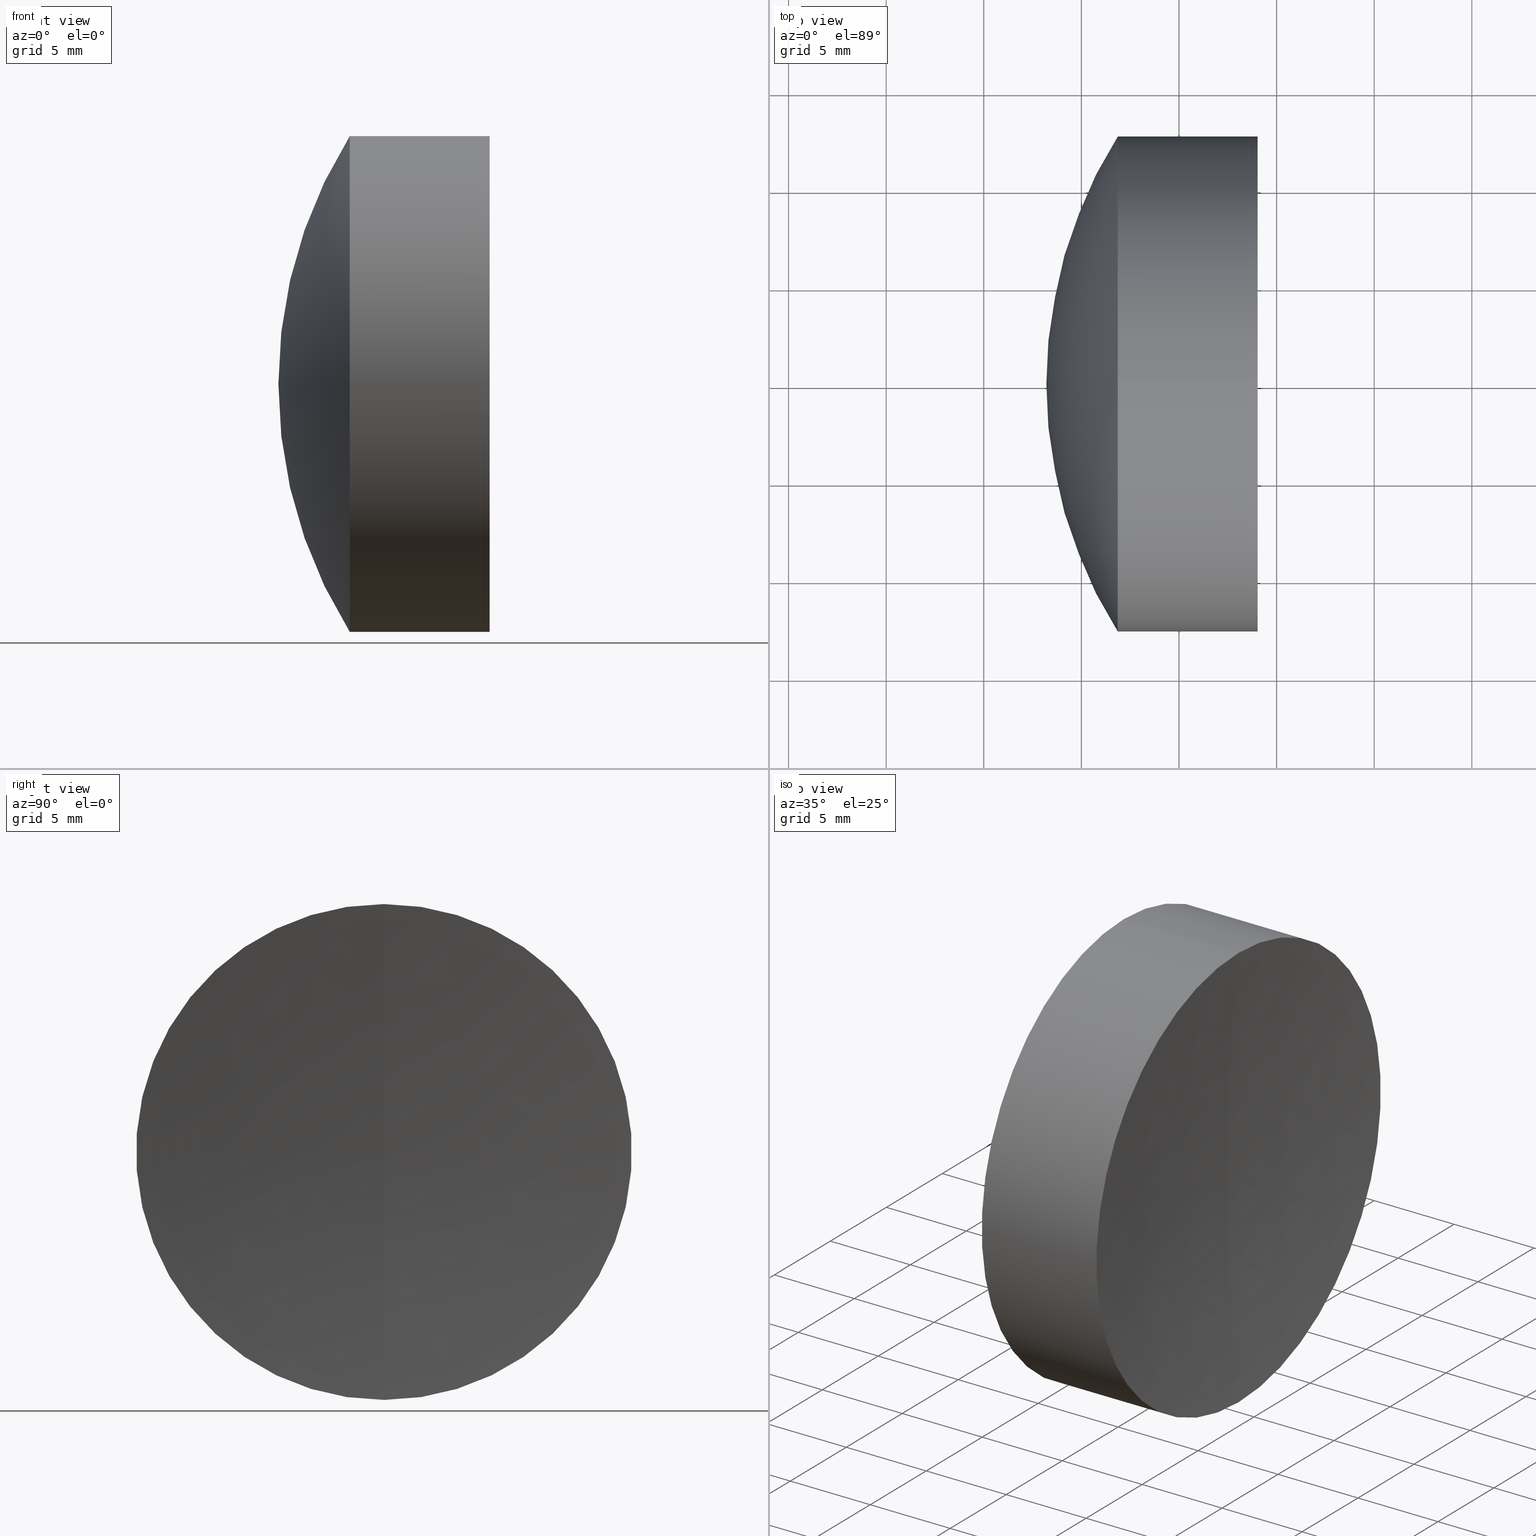
[diagram: canonical four-view strip — front | top / right | iso, engineering-drawing reading convention]
A machine part, canonical four-view strip (front | top / right | iso — engineering-drawing reading convention). The complete STEP part file that produces these views, byte-faithful:
ISO-10303-21;
HEADER;
FILE_DESCRIPTION (( 'STEP AP214' ),
    '1' );
FILE_NAME ('145163.STEP',
    '2019-06-07T06:10:12',
    ( 'user' ),
    ( '΢���й�' ),
    'SwSTEP 2.0',
    'SolidWorks 2016',
    '' );
FILE_SCHEMA (( 'AUTOMOTIVE_DESIGN' ));
ENDSEC;

DATA;
#1 = DIRECTION ( 'NONE',  ( 0.0000000000000000000, 1.000000000000000000, 0.0000000000000000000 ) ) ;
#2 = STYLED_ITEM ( 'NONE', ( #180 ), #346 ) ;
#3 = SPHERICAL_SURFACE ( 'NONE', #336, 112.0800000000000000 ) ;
#4 = ORIENTED_EDGE ( 'NONE', *, *, #33, .F. ) ;
#5 = DIRECTION ( 'NONE',  ( 0.0000000000000000000, 0.0000000000000000000, 1.000000000000000000 ) ) ;
#6 = CARTESIAN_POINT ( 'NONE',  ( 13.38661921602329700, 0.0000000000000000000, -1.021629593318478500E-014 ) ) ;
#7 = DIRECTION ( 'NONE',  ( 0.0000000000000000000, 1.000000000000000000, 0.0000000000000000000 ) ) ;
#8 = PRODUCT_DEFINITION_SHAPE ( 'NONE', 'NONE',  #90 ) ;
#9 = DIRECTION ( 'NONE',  ( 0.0000000000000000000, 0.0000000000000000000, -1.000000000000000000 ) ) ;
#10 = CARTESIAN_POINT ( 'NONE',  ( 44.02847447573057600, 0.0000000000000000000, -12.70000000000000300 ) ) ;
#11 = MANIFOLD_SOLID_BREP ( '��ת2', #281 ) ;
#12 = SURFACE_STYLE_FILL_AREA ( #280 ) ;
#13 = ORIENTED_EDGE ( 'NONE', *, *, #284, .T. ) ;
#14 = DIRECTION ( 'NONE',  ( 0.0000000000000000000, 0.0000000000000000000, 1.000000000000000000 ) ) ;
#15 = MECHANICAL_DESIGN_GEOMETRIC_PRESENTATION_REPRESENTATION (  '', ( #40 ), #254 ) ;
#16 = CIRCLE ( 'NONE', #332, 12.70000000000001500 ) ;
#17 = EDGE_LOOP ( 'NONE', ( #120, #335, #166 ) ) ;
#18 = EDGE_CURVE ( 'NONE', #190, #54, #186, .T. ) ;
#19 = FACE_OUTER_BOUND ( 'NONE', #235, .T. ) ;
#20 = AXIS2_PLACEMENT_3D ( 'NONE', #57, #72, #110 ) ;
#21 = CIRCLE ( 'NONE', #297, 12.69999999999999400 ) ;
#22 = UNCERTAINTY_MEASURE_WITH_UNIT (LENGTH_MEASURE( 1.000000000000000100E-005 ), #189, 'distance_accuracy_value', 'NONE');
#23 = EDGE_CURVE ( 'NONE', #196, #159, #43, .T. ) ;
#24 = EDGE_LOOP ( 'NONE', ( #36, #115, #192 ) ) ;
#25 = VERTEX_POINT ( 'NONE', #38 ) ;
#26 = DIRECTION ( 'NONE',  ( 0.0000000000000000000, 0.0000000000000000000, 1.000000000000000000 ) ) ;
#27 = CARTESIAN_POINT ( 'NONE',  ( 155.3866192160233800, 0.0000000000000000000, 0.0000000000000000000 ) ) ;
#28 = DIRECTION ( 'NONE',  ( -1.000000000000000000, -0.0000000000000000000, -0.0000000000000000000 ) ) ;
#29 = EDGE_CURVE ( 'NONE', #231, #25, #322, .T. ) ;
#30 = CIRCLE ( 'NONE', #127, 23.87999999999999900 ) ;
#31 = MECHANICAL_DESIGN_GEOMETRIC_PRESENTATION_REPRESENTATION (  '', ( #214 ), #177 ) ;
#32 = DIRECTION ( 'NONE',  ( -0.0000000000000000000, 1.000000000000000000, 1.224646799147353200E-016 ) ) ;
#33 = EDGE_CURVE ( 'NONE', #25, #202, #288, .T. ) ;
#34 = DIRECTION ( 'NONE',  ( -0.0000000000000000000, -1.000000000000000000, -0.0000000000000000000 ) ) ;
#35 = FILL_AREA_STYLE_COLOUR ( '', #182 ) ;
#36 = ORIENTED_EDGE ( 'NONE', *, *, #148, .F. ) ;
#37 = CARTESIAN_POINT ( 'NONE',  ( 43.30661921602337100, 0.0000000000000000000, -6.862920662421767300E-015 ) ) ;
#38 = CARTESIAN_POINT ( 'NONE',  ( 36.86375097237397100, 1.555301434917137400E-015, -12.69999999999999000 ) ) ;
#39 = CIRCLE ( 'NONE', #257, 12.69999999999999400 ) ;
#40 = STYLED_ITEM ( 'NONE', ( #263 ), #11 ) ;
#41 = CARTESIAN_POINT ( 'NONE',  ( 13.38661921602329700, 0.0000000000000000000, -1.021629593318478500E-014 ) ) ;
#42 = DIRECTION ( 'NONE',  ( 0.0000000000000000000, -1.000000000000000000, -1.224646799147353200E-016 ) ) ;
#43 = CIRCLE ( 'NONE', #244, 112.0800000000000000 ) ;
#44 = CLOSED_SHELL ( 'NONE', ( #302, #77, #92, #99, #167, #224 ) ) ;
#45 = DIRECTION ( 'NONE',  ( -1.000000000000000000, -0.0000000000000000000, -0.0000000000000000000 ) ) ;
#46 = ADVANCED_FACE ( 'NONE', ( #118 ), #104, .F. ) ;
#47 = SURFACE_STYLE_USAGE ( .BOTH. , #142 ) ;
#48 = CARTESIAN_POINT ( 'NONE',  ( 36.86375097237397100, 0.0000000000000000000, 0.0000000000000000000 ) ) ;
#49 = CYLINDRICAL_SURFACE ( 'NONE', #174, 12.70000000000001700 ) ;
#50 = CIRCLE ( 'NONE', #283, 28.12000000000006800 ) ;
#51 = SPHERICAL_SURFACE ( 'NONE', #209, 23.87999999999999900 ) ;
#52 = ORIENTED_EDGE ( 'NONE', *, *, #295, .T. ) ;
#53 = PRESENTATION_LAYER_ASSIGNMENT (  '', '', ( #40 ) ) ;
#54 = VERTEX_POINT ( 'NONE', #211 ) ;
#55 = EDGE_LOOP ( 'NONE', ( #52, #219, #274 ) ) ;
#56 = DIRECTION ( 'NONE',  ( -0.0000000000000000000, -1.000000000000000000, -0.0000000000000000000 ) ) ;
#57 = CARTESIAN_POINT ( 'NONE',  ( 57.08661921602329400, 0.0000000000000000000, -8.346372368148395400E-017 ) ) ;
#58 = AXIS2_PLACEMENT_3D ( 'NONE', #198, #32, #173 ) ;
#59 = CYLINDRICAL_SURFACE ( 'NONE', #171, 12.70000000000001700 ) ;
#60 = CARTESIAN_POINT ( 'NONE',  ( -0.5519199926577972300, 1.555301434917140600E-015, -12.70000000000001700 ) ) ;
#61 = ORIENTED_EDGE ( 'NONE', *, *, #94, .F. ) ;
#62 = FACE_OUTER_BOUND ( 'NONE', #125, .T. ) ;
#63 = PRODUCT_CONTEXT ( 'NONE', #311, 'mechanical' ) ;
#64 = CARTESIAN_POINT ( 'NONE',  ( 38.47534975385649100, 0.0000000000000000000, 0.0000000000000000000 ) ) ;
#65 = DIRECTION ( 'NONE',  ( 0.0000000000000000000, 1.000000000000000000, 0.0000000000000000000 ) ) ;
#66 = CARTESIAN_POINT ( 'NONE',  ( -0.8160621761658039000, 0.0000000000000000000, 12.69999999999999400 ) ) ;
#67 = EDGE_LOOP ( 'NONE', ( #301, #236, #105 ) ) ;
#68 = EDGE_LOOP ( 'NONE', ( #79, #253, #152, #4 ) ) ;
#69 = CIRCLE ( 'NONE', #20, 23.87999999999999900 ) ;
#70 = EDGE_LOOP ( 'NONE', ( #208, #327, #61 ) ) ;
#71 = EDGE_CURVE ( 'NONE', #241, #231, #347, .T. ) ;
#72 = DIRECTION ( 'NONE',  ( -0.0000000000000000000, 1.000000000000000000, 1.224646799147353200E-016 ) ) ;
#73 =( GEOMETRIC_REPRESENTATION_CONTEXT ( 3 ) GLOBAL_UNCERTAINTY_ASSIGNED_CONTEXT ( ( #84 ) ) GLOBAL_UNIT_ASSIGNED_CONTEXT ( ( #136, #304, #188 ) ) REPRESENTATION_CONTEXT ( 'NONE', 'WORKASPACE' ) );
#74 = ORIENTED_EDGE ( 'NONE', *, *, #94, .T. ) ;
#75 = EDGE_CURVE ( 'NONE', #299, #231, #156, .T. ) ;
#76 = ORIENTED_EDGE ( 'NONE', *, *, #295, .F. ) ;
#77 = ADVANCED_FACE ( 'NONE', ( #321 ), #206, .T. ) ;
#78 = DIRECTION ( 'NONE',  ( 0.0000000000000000000, 0.0000000000000000000, 1.000000000000000000 ) ) ;
#79 = ORIENTED_EDGE ( 'NONE', *, *, #29, .F. ) ;
#80 = PRODUCT_DEFINITION_FORMATION_WITH_SPECIFIED_SOURCE ( '�κ�', '', #223, .NOT_KNOWN. ) ;
#81 = CIRCLE ( 'NONE', #124, 12.70000000000001700 ) ;
#82 = DIRECTION ( 'NONE',  ( -1.000000000000000000, -0.0000000000000000000, -0.0000000000000000000 ) ) ;
#83 = DIRECTION ( 'NONE',  ( -1.000000000000000000, -0.0000000000000000000, -0.0000000000000000000 ) ) ;
#84 = UNCERTAINTY_MEASURE_WITH_UNIT (LENGTH_MEASURE( 1.000000000000000100E-005 ), #136, 'distance_accuracy_value', 'NONE');
#85 = FACE_OUTER_BOUND ( 'NONE', #55, .T. ) ;
#86 = CARTESIAN_POINT ( 'NONE',  ( -0.5519199926577972300, 0.0000000000000000000, 0.0000000000000000000 ) ) ;
#87 = ORIENTED_EDGE ( 'NONE', *, *, #121, .F. ) ;
#88 = CARTESIAN_POINT ( 'NONE',  ( 13.38661921602329700, 0.0000000000000000000, -1.021629593318478500E-014 ) ) ;
#89 = CIRCLE ( 'NONE', #221, 112.0800000000000000 ) ;
#90 = PRODUCT_DEFINITION ( 'δ֪', '', #80, #141 ) ;
#91 = EDGE_CURVE ( 'NONE', #231, #241, #21, .T. ) ;
#92 = ADVANCED_FACE ( 'NONE', ( #85 ), #305, .T. ) ;
#93 =( NAMED_UNIT ( * ) SI_UNIT ( $, .STERADIAN. ) SOLID_ANGLE_UNIT ( ) );
#94 = EDGE_CURVE ( 'NONE', #145, #159, #89, .T. ) ;
#95 = FACE_OUTER_BOUND ( 'NONE', #68, .T. ) ;
#96 = EDGE_LOOP ( 'NONE', ( #139, #216, #74 ) ) ;
#97 = ADVANCED_FACE ( 'NONE', ( #247 ), #201, .F. ) ;
#98 = DIRECTION ( 'NONE',  ( 0.0000000000000000000, 0.0000000000000000000, 1.000000000000000000 ) ) ;
#99 = ADVANCED_FACE ( 'NONE', ( #212 ), #51, .T. ) ;
#100 = CARTESIAN_POINT ( 'NONE',  ( -0.8160621761658039000, 1.555301434917138000E-015, -12.69999999999999400 ) ) ;
#101 =( NAMED_UNIT ( * ) PLANE_ANGLE_UNIT ( ) SI_UNIT ( $, .RADIAN. ) );
#102 = DIRECTION ( 'NONE',  ( 0.0000000000000000000, 0.0000000000000000000, 1.000000000000000000 ) ) ;
#103 = CARTESIAN_POINT ( 'NONE',  ( 44.02847447573056900, 0.0000000000000000000, 0.0000000000000000000 ) ) ;
#104 = SPHERICAL_SURFACE ( 'NONE', #168, 112.0800000000000000 ) ;
#105 = ORIENTED_EDGE ( 'NONE', *, *, #18, .T. ) ;
#106 = PRESENTATION_LAYER_ASSIGNMENT (  '', '', ( #2 ) ) ;
#107 = FACE_OUTER_BOUND ( 'NONE', #17, .T. ) ;
#108 = DIRECTION ( 'NONE',  ( 0.0000000000000000000, 0.0000000000000000000, 1.000000000000000000 ) ) ;
#109 = CARTESIAN_POINT ( 'NONE',  ( 44.02847447573057600, -1.555301434917138800E-015, 12.70000000000000300 ) ) ;
#110 = DIRECTION ( 'NONE',  ( 0.0000000000000000000, -1.224646799147353000E-016, 1.000000000000000000 ) ) ;
#111 = CARTESIAN_POINT ( 'NONE',  ( 57.08661921602329400, 0.0000000000000000000, -8.346372368148395400E-017 ) ) ;
#112 = APPLICATION_PROTOCOL_DEFINITION ( 'draft international standard', 'automotive_design', 1998, #329 ) ;
#113 = CARTESIAN_POINT ( 'NONE',  ( 155.3866192160233800, 0.0000000000000000000, 0.0000000000000000000 ) ) ;
#114 = EDGE_CURVE ( 'NONE', #54, #190, #16, .T. ) ;
#115 = ORIENTED_EDGE ( 'NONE', *, *, #181, .T. ) ;
#116 = DIRECTION ( 'NONE',  ( -1.000000000000000000, -0.0000000000000000000, -0.0000000000000000000 ) ) ;
#117 = CARTESIAN_POINT ( 'NONE',  ( -0.8160621761658039000, 0.0000000000000000000, 0.0000000000000000000 ) ) ;
#118 = FACE_OUTER_BOUND ( 'NONE', #70, .T. ) ;
#119 =( LENGTH_UNIT ( ) NAMED_UNIT ( * ) SI_UNIT ( .MILLI., .METRE. ) );
#120 = ORIENTED_EDGE ( 'NONE', *, *, #75, .F. ) ;
#121 = EDGE_CURVE ( 'NONE', #241, #202, #135, .T. ) ;
#122 = CIRCLE ( 'NONE', #58, 28.12000000000006800 ) ;
#123 = SURFACE_STYLE_FILL_AREA ( #157 ) ;
#124 = AXIS2_PLACEMENT_3D ( 'NONE', #170, #298, #78 ) ;
#125 = EDGE_LOOP ( 'NONE', ( #264, #230, #342 ) ) ;
#126 = DIRECTION ( 'NONE',  ( 0.0000000000000000000, -1.224646799147353200E-016, 1.000000000000000000 ) ) ;
#127 = AXIS2_PLACEMENT_3D ( 'NONE', #155, #333, #290 ) ;
#128 = DIRECTION ( 'NONE',  ( -0.0000000000000000000, 1.000000000000000000, 1.224646799147353200E-016 ) ) ;
#129 = EDGE_CURVE ( 'NONE', #202, #294, #30, .T. ) ;
#130 = FACE_OUTER_BOUND ( 'NONE', #96, .T. ) ;
#131 = ORIENTED_EDGE ( 'NONE', *, *, #210, .F. ) ;
#132 = AXIS2_PLACEMENT_3D ( 'NONE', #117, #339, #326 ) ;
#133 = CARTESIAN_POINT ( 'NONE',  ( 36.86375097237397100, 0.0000000000000000000, 12.69999999999999000 ) ) ;
#134 = DIRECTION ( 'NONE',  ( -1.000000000000000000, -0.0000000000000000000, -0.0000000000000000000 ) ) ;
#135 = LINE ( 'NONE', #66, #313 ) ;
#136 =( LENGTH_UNIT ( ) NAMED_UNIT ( * ) SI_UNIT ( .MILLI., .METRE. ) );
#137 = ADVANCED_FACE ( 'NONE', ( #151 ), #278, .F. ) ;
#138 =( GEOMETRIC_REPRESENTATION_CONTEXT ( 3 ) GLOBAL_UNCERTAINTY_ASSIGNED_CONTEXT ( ( #22 ) ) GLOBAL_UNIT_ASSIGNED_CONTEXT ( ( #189, #101, #93 ) ) REPRESENTATION_CONTEXT ( 'NONE', 'WORKASPACE' ) );
#139 = ORIENTED_EDGE ( 'NONE', *, *, #23, .F. ) ;
#140 = CARTESIAN_POINT ( 'NONE',  ( 13.38661921602329700, 0.0000000000000000000, -1.021629593318478500E-014 ) ) ;
#141 = PRODUCT_DEFINITION_CONTEXT ( 'detailed design', #329, 'design' ) ;
#142 = SURFACE_SIDE_STYLE ('',( #250 ) ) ;
#143 = COLOUR_RGB ( '',1.000000000000000000, 1.000000000000000000, 1.000000000000000000 ) ;
#144 = ADVANCED_BREP_SHAPE_REPRESENTATION ( '145163', ( #346, #11, #154 ), #73 ) ;
#145 = VERTEX_POINT ( 'NONE', #10 ) ;
#146 = AXIS2_PLACEMENT_3D ( 'NONE', #64, #246, #179 ) ;
#147 = PRESENTATION_STYLE_ASSIGNMENT (( #220 ) ) ;
#148 = EDGE_CURVE ( 'NONE', #197, #190, #122, .T. ) ;
#149 = FILL_AREA_STYLE ('',( #194 ) ) ;
#150 = DIRECTION ( 'NONE',  ( -1.000000000000000000, -0.0000000000000000000, -0.0000000000000000000 ) ) ;
#151 = FACE_OUTER_BOUND ( 'NONE', #67, .T. ) ;
#152 = ORIENTED_EDGE ( 'NONE', *, *, #121, .T. ) ;
#153 = DIRECTION ( 'NONE',  ( -1.000000000000000000, -0.0000000000000000000, -0.0000000000000000000 ) ) ;
#154 = AXIS2_PLACEMENT_3D ( 'NONE', #213, #266, #265 ) ;
#155 = CARTESIAN_POINT ( 'NONE',  ( 57.08661921602329400, 0.0000000000000000000, -8.346372368148395400E-017 ) ) ;
#156 = CIRCLE ( 'NONE', #228, 28.12000000000006800 ) ;
#157 = FILL_AREA_STYLE ('',( #35 ) ) ;
#158 = EDGE_LOOP ( 'NONE', ( #131, #243, #13, #331 ) ) ;
#159 = VERTEX_POINT ( 'NONE', #37 ) ;
#160 = MECHANICAL_DESIGN_GEOMETRIC_PRESENTATION_REPRESENTATION (  '', ( #2 ), #138 ) ;
#161 = DIRECTION ( 'NONE',  ( 0.0000000000000000000, 1.000000000000000000, 0.0000000000000000000 ) ) ;
#162 =( LENGTH_UNIT ( ) NAMED_UNIT ( * ) SI_UNIT ( .MILLI., .METRE. ) );
#163 = APPLICATION_PROTOCOL_DEFINITION ( 'draft international standard', 'automotive_design', 1998, #311 ) ;
#164 = CARTESIAN_POINT ( 'NONE',  ( -0.5519199926577972300, 0.0000000000000000000, 0.0000000000000000000 ) ) ;
#165 =( NAMED_UNIT ( * ) PLANE_ANGLE_UNIT ( ) SI_UNIT ( $, .RADIAN. ) );
#166 = ORIENTED_EDGE ( 'NONE', *, *, #91, .F. ) ;
#167 = ADVANCED_FACE ( 'NONE', ( #95 ), #310, .T. ) ;
#168 = AXIS2_PLACEMENT_3D ( 'NONE', #270, #56, #204 ) ;
#169 = CARTESIAN_POINT ( 'NONE',  ( 33.20661921602329900, 0.0000000000000000000, 1.378764554500455700E-015 ) ) ;
#170 = CARTESIAN_POINT ( 'NONE',  ( 44.02847447573056900, 0.0000000000000000000, 0.0000000000000000000 ) ) ;
#171 = AXIS2_PLACEMENT_3D ( 'NONE', #86, #261, #102 ) ;
#172 = ORIENTED_EDGE ( 'NONE', *, *, #312, .T. ) ;
#173 = DIRECTION ( 'NONE',  ( 0.0000000000000000000, -1.224646799147353200E-016, 1.000000000000000000 ) ) ;
#174 = AXIS2_PLACEMENT_3D ( 'NONE', #164, #116, #303 ) ;
#175 = ORIENTED_EDGE ( 'NONE', *, *, #114, .F. ) ;
#176 = CARTESIAN_POINT ( 'NONE',  ( 36.86375097237397100, 0.0000000000000000000, 0.0000000000000000000 ) ) ;
#177 =( GEOMETRIC_REPRESENTATION_CONTEXT ( 3 ) GLOBAL_UNCERTAINTY_ASSIGNED_CONTEXT ( ( #273 ) ) GLOBAL_UNIT_ASSIGNED_CONTEXT ( ( #119, #165, #267 ) ) REPRESENTATION_CONTEXT ( 'NONE', 'WORKASPACE' ) );
#178 = SURFACE_SIDE_STYLE ('',( #12 ) ) ;
#179 = DIRECTION ( 'NONE',  ( 0.0000000000000000000, 0.0000000000000000000, 1.000000000000000000 ) ) ;
#180 = PRESENTATION_STYLE_ASSIGNMENT (( #47 ) ) ;
#181 = EDGE_CURVE ( 'NONE', #197, #54, #50, .T. ) ;
#182 = COLOUR_RGB ( '',1.000000000000000000, 1.000000000000000000, 1.000000000000000000 ) ;
#183 = CARTESIAN_POINT ( 'NONE',  ( 13.38661921602329700, 0.0000000000000000000, -1.021629593318478500E-014 ) ) ;
#184 = SURFACE_SIDE_STYLE ('',( #123 ) ) ;
#185 = AXIS2_PLACEMENT_3D ( 'NONE', #41, #242, #9 ) ;
#186 = CIRCLE ( 'NONE', #275, 12.70000000000001500 ) ;
#187 = ADVANCED_FACE ( 'NONE', ( #272 ), #49, .T. ) ;
#188 =( NAMED_UNIT ( * ) SI_UNIT ( $, .STERADIAN. ) SOLID_ANGLE_UNIT ( ) );
#189 =( LENGTH_UNIT ( ) NAMED_UNIT ( * ) SI_UNIT ( .MILLI., .METRE. ) );
#190 = VERTEX_POINT ( 'NONE', #203 ) ;
#191 = CARTESIAN_POINT ( 'NONE',  ( 41.50661921602336700, 0.0000000000000000000, -8.494442533583603000E-015 ) ) ;
#192 = ORIENTED_EDGE ( 'NONE', *, *, #114, .T. ) ;
#193 = AXIS2_PLACEMENT_3D ( 'NONE', #6, #7, #316 ) ;
#194 = FILL_AREA_STYLE_COLOUR ( '', #143 ) ;
#195 = EDGE_CURVE ( 'NONE', #25, #294, #69, .T. ) ;
#196 = VERTEX_POINT ( 'NONE', #109 ) ;
#197 = VERTEX_POINT ( 'NONE', #314 ) ;
#198 = CARTESIAN_POINT ( 'NONE',  ( 13.38661921602329700, 0.0000000000000000000, -1.021629593318478500E-014 ) ) ;
#199 = ADVANCED_FACE ( 'NONE', ( #19 ), #59, .T. ) ;
#200 = PRESENTATION_LAYER_ASSIGNMENT (  '', '', ( #214 ) ) ;
#201 = SPHERICAL_SURFACE ( 'NONE', #234, 28.12000000000006800 ) ;
#202 = VERTEX_POINT ( 'NONE', #133 ) ;
#203 = CARTESIAN_POINT ( 'NONE',  ( 38.47534975385648400, 1.555301434917139200E-015, -12.70000000000001400 ) ) ;
#204 = DIRECTION ( 'NONE',  ( 0.0000000000000000000, 0.0000000000000000000, -1.000000000000000000 ) ) ;
#205 = CARTESIAN_POINT ( 'NONE',  ( 38.47534975385649100, 0.0000000000000000000, 0.0000000000000000000 ) ) ;
#206 = CYLINDRICAL_SURFACE ( 'NONE', #293, 12.69999999999999400 ) ;
#207 = ADVANCED_FACE ( 'NONE', ( #130 ), #3, .F. ) ;
#208 = ORIENTED_EDGE ( 'NONE', *, *, #312, .F. ) ;
#209 = AXIS2_PLACEMENT_3D ( 'NONE', #111, #1, #344 ) ;
#210 = EDGE_CURVE ( 'NONE', #145, #190, #258, .T. ) ;
#211 = CARTESIAN_POINT ( 'NONE',  ( 38.47534975385648400, 0.0000000000000000000, 12.70000000000000300 ) ) ;
#212 = FACE_OUTER_BOUND ( 'NONE', #341, .T. ) ;
#213 = CARTESIAN_POINT ( 'NONE',  ( 0.0000000000000000000, 0.0000000000000000000, 0.0000000000000000000 ) ) ;
#214 = STYLED_ITEM ( 'NONE', ( #147 ), #144 ) ;
#215 = VECTOR ( 'NONE', #83, 1000.000000000000000 ) ;
#216 = ORIENTED_EDGE ( 'NONE', *, *, #237, .F. ) ;
#217 = LINE ( 'NONE', #307, #255 ) ;
#218 = DIRECTION ( 'NONE',  ( 0.0000000000000000000, 0.0000000000000000000, -1.000000000000000000 ) ) ;
#219 = ORIENTED_EDGE ( 'NONE', *, *, #195, .T. ) ;
#220 = SURFACE_STYLE_USAGE ( .BOTH. , #178 ) ;
#221 = AXIS2_PLACEMENT_3D ( 'NONE', #27, #245, #271 ) ;
#222 = DIRECTION ( 'NONE',  ( 0.0000000000000000000, -1.000000000000000000, 0.0000000000000000000 ) ) ;
#223 = PRODUCT ( '145163', '145163', '', ( #63 ) ) ;
#224 = ADVANCED_FACE ( 'NONE', ( #107 ), #229, .T. ) ;
#225 = ORIENTED_EDGE ( 'NONE', *, *, #129, .T. ) ;
#226 = DIRECTION ( 'NONE',  ( -1.000000000000000000, -0.0000000000000000000, -0.0000000000000000000 ) ) ;
#227 = DIRECTION ( 'NONE',  ( 0.0000000000000000000, 0.0000000000000000000, 1.000000000000000000 ) ) ;
#228 = AXIS2_PLACEMENT_3D ( 'NONE', #88, #128, #126 ) ;
#229 = SPHERICAL_SURFACE ( 'NONE', #193, 28.12000000000006800 ) ;
#230 = ORIENTED_EDGE ( 'NONE', *, *, #75, .T. ) ;
#231 = VERTEX_POINT ( 'NONE', #251 ) ;
#232 =( NAMED_UNIT ( * ) PLANE_ANGLE_UNIT ( ) SI_UNIT ( $, .RADIAN. ) );
#233 = COLOUR_RGB ( '',1.000000000000000000, 1.000000000000000000, 1.000000000000000000 ) ;
#234 = AXIS2_PLACEMENT_3D ( 'NONE', #343, #65, #306 ) ;
#235 = EDGE_LOOP ( 'NONE', ( #172, #256, #175, #282 ) ) ;
#236 = ORIENTED_EDGE ( 'NONE', *, *, #148, .T. ) ;
#237 = EDGE_CURVE ( 'NONE', #145, #196, #319, .T. ) ;
#238 = DIRECTION ( 'NONE',  ( -1.000000000000000000, -0.0000000000000000000, -0.0000000000000000000 ) ) ;
#239 = AXIS2_PLACEMENT_3D ( 'NONE', #176, #28, #227 ) ;
#240 = CARTESIAN_POINT ( 'NONE',  ( 13.38661921602329700, 0.0000000000000000000, -1.021629593318478500E-014 ) ) ;
#241 = VERTEX_POINT ( 'NONE', #259 ) ;
#242 = DIRECTION ( 'NONE',  ( 0.0000000000000000000, -1.000000000000000000, 0.0000000000000000000 ) ) ;
#243 = ORIENTED_EDGE ( 'NONE', *, *, #237, .T. ) ;
#244 = AXIS2_PLACEMENT_3D ( 'NONE', #323, #42, #287 ) ;
#245 = DIRECTION ( 'NONE',  ( 0.0000000000000000000, 1.000000000000000000, -0.0000000000000000000 ) ) ;
#246 = DIRECTION ( 'NONE',  ( -1.000000000000000000, -0.0000000000000000000, -0.0000000000000000000 ) ) ;
#247 = FACE_OUTER_BOUND ( 'NONE', #24, .T. ) ;
#248 = ORIENTED_EDGE ( 'NONE', *, *, #195, .F. ) ;
#249 =( NAMED_UNIT ( * ) SI_UNIT ( $, .STERADIAN. ) SOLID_ANGLE_UNIT ( ) );
#250 = SURFACE_STYLE_FILL_AREA ( #149 ) ;
#251 = CARTESIAN_POINT ( 'NONE',  ( 38.47534975385649100, 1.555301434917138000E-015, -12.69999999999999400 ) ) ;
#252 = ORIENTED_EDGE ( 'NONE', *, *, #29, .T. ) ;
#253 = ORIENTED_EDGE ( 'NONE', *, *, #91, .T. ) ;
#254 =( GEOMETRIC_REPRESENTATION_CONTEXT ( 3 ) GLOBAL_UNCERTAINTY_ASSIGNED_CONTEXT ( ( #340 ) ) GLOBAL_UNIT_ASSIGNED_CONTEXT ( ( #162, #232, #249 ) ) REPRESENTATION_CONTEXT ( 'NONE', 'WORKASPACE' ) );
#255 = VECTOR ( 'NONE', #238, 1000.000000000000000 ) ;
#256 = ORIENTED_EDGE ( 'NONE', *, *, #210, .T. ) ;
#257 = AXIS2_PLACEMENT_3D ( 'NONE', #48, #82, #108 ) ;
#258 = LINE ( 'NONE', #60, #291 ) ;
#259 = CARTESIAN_POINT ( 'NONE',  ( 38.47534975385649100, 0.0000000000000000000, 12.69999999999999400 ) ) ;
#260 = CARTESIAN_POINT ( 'NONE',  ( 57.08661921602329400, 0.0000000000000000000, -8.346372368148395400E-017 ) ) ;
#261 = DIRECTION ( 'NONE',  ( -1.000000000000000000, -0.0000000000000000000, -0.0000000000000000000 ) ) ;
#262 = AXIS2_PLACEMENT_3D ( 'NONE', #240, #279, #26 ) ;
#263 = PRESENTATION_STYLE_ASSIGNMENT (( #276 ) ) ;
#264 = ORIENTED_EDGE ( 'NONE', *, *, #277, .F. ) ;
#265 = DIRECTION ( 'NONE',  ( 1.000000000000000000, 0.0000000000000000000, 0.0000000000000000000 ) ) ;
#266 = DIRECTION ( 'NONE',  ( 0.0000000000000000000, 0.0000000000000000000, 1.000000000000000000 ) ) ;
#267 =( NAMED_UNIT ( * ) SI_UNIT ( $, .STERADIAN. ) SOLID_ANGLE_UNIT ( ) );
#268 = AXIS2_PLACEMENT_3D ( 'NONE', #260, #308, #330 ) ;
#269 = FILL_AREA_STYLE_COLOUR ( '', #233 ) ;
#270 = CARTESIAN_POINT ( 'NONE',  ( 155.3866192160233800, 0.0000000000000000000, 0.0000000000000000000 ) ) ;
#271 = DIRECTION ( 'NONE',  ( 0.0000000000000000000, 0.0000000000000000000, 1.000000000000000000 ) ) ;
#272 = FACE_OUTER_BOUND ( 'NONE', #158, .T. ) ;
#273 = UNCERTAINTY_MEASURE_WITH_UNIT (LENGTH_MEASURE( 1.000000000000000100E-005 ), #119, 'distance_accuracy_value', 'NONE');
#274 = ORIENTED_EDGE ( 'NONE', *, *, #129, .F. ) ;
#275 = AXIS2_PLACEMENT_3D ( 'NONE', #285, #153, #5 ) ;
#276 = SURFACE_STYLE_USAGE ( .BOTH. , #184 ) ;
#277 = EDGE_CURVE ( 'NONE', #299, #241, #320, .T. ) ;
#278 = SPHERICAL_SURFACE ( 'NONE', #262, 28.12000000000006800 ) ;
#279 = DIRECTION ( 'NONE',  ( 0.0000000000000000000, 1.000000000000000000, 0.0000000000000000000 ) ) ;
#280 = FILL_AREA_STYLE ('',( #269 ) ) ;
#281 = CLOSED_SHELL ( 'NONE', ( #199, #46, #137, #97, #207, #187 ) ) ;
#282 = ORIENTED_EDGE ( 'NONE', *, *, #284, .F. ) ;
#283 = AXIS2_PLACEMENT_3D ( 'NONE', #140, #222, #289 ) ;
#284 = EDGE_CURVE ( 'NONE', #196, #54, #217, .T. ) ;
#285 = CARTESIAN_POINT ( 'NONE',  ( 38.47534975385649100, 0.0000000000000000000, 0.0000000000000000000 ) ) ;
#286 = SPHERICAL_SURFACE ( 'NONE', #309, 28.12000000000006800 ) ;
#287 = DIRECTION ( 'NONE',  ( 0.0000000000000000000, 1.224646799147353200E-016, -1.000000000000000000 ) ) ;
#288 = CIRCLE ( 'NONE', #239, 12.69999999999999400 ) ;
#289 = DIRECTION ( 'NONE',  ( 0.0000000000000000000, 0.0000000000000000000, -1.000000000000000000 ) ) ;
#290 = DIRECTION ( 'NONE',  ( 0.0000000000000000000, 0.0000000000000000000, -1.000000000000000000 ) ) ;
#291 = VECTOR ( 'NONE', #45, 1000.000000000000000 ) ;
#292 = CARTESIAN_POINT ( 'NONE',  ( 38.47534975385649100, 0.0000000000000000000, 0.0000000000000000000 ) ) ;
#293 = AXIS2_PLACEMENT_3D ( 'NONE', #338, #226, #14 ) ;
#294 = VERTEX_POINT ( 'NONE', #169 ) ;
#295 = EDGE_CURVE ( 'NONE', #202, #25, #39, .T. ) ;
#296 = DIRECTION ( 'NONE',  ( 0.0000000000000000000, 0.0000000000000000000, 1.000000000000000000 ) ) ;
#297 = AXIS2_PLACEMENT_3D ( 'NONE', #205, #345, #317 ) ;
#298 = DIRECTION ( 'NONE',  ( -1.000000000000000000, -0.0000000000000000000, -0.0000000000000000000 ) ) ;
#299 = VERTEX_POINT ( 'NONE', #191 ) ;
#300 = DIRECTION ( 'NONE',  ( -1.000000000000000000, -0.0000000000000000000, -0.0000000000000000000 ) ) ;
#301 = ORIENTED_EDGE ( 'NONE', *, *, #181, .F. ) ;
#302 = ADVANCED_FACE ( 'NONE', ( #62 ), #286, .T. ) ;
#303 = DIRECTION ( 'NONE',  ( 0.0000000000000000000, 0.0000000000000000000, 1.000000000000000000 ) ) ;
#304 =( NAMED_UNIT ( * ) PLANE_ANGLE_UNIT ( ) SI_UNIT ( $, .RADIAN. ) );
#305 = SPHERICAL_SURFACE ( 'NONE', #268, 23.87999999999999900 ) ;
#306 = DIRECTION ( 'NONE',  ( 0.0000000000000000000, 0.0000000000000000000, 1.000000000000000000 ) ) ;
#307 = CARTESIAN_POINT ( 'NONE',  ( -0.5519199926577972300, 0.0000000000000000000, 12.70000000000001700 ) ) ;
#308 = DIRECTION ( 'NONE',  ( 0.0000000000000000000, 1.000000000000000000, 0.0000000000000000000 ) ) ;
#309 = AXIS2_PLACEMENT_3D ( 'NONE', #183, #161, #318 ) ;
#310 = CYLINDRICAL_SURFACE ( 'NONE', #132, 12.69999999999999400 ) ;
#311 = APPLICATION_CONTEXT ( 'automotive_design' ) ;
#312 = EDGE_CURVE ( 'NONE', #196, #145, #81, .T. ) ;
#313 = VECTOR ( 'NONE', #150, 1000.000000000000000 ) ;
#314 = CARTESIAN_POINT ( 'NONE',  ( 41.50661921602336700, 0.0000000000000000000, -8.494442533583603000E-015 ) ) ;
#315 = AXIS2_PLACEMENT_3D ( 'NONE', #103, #300, #98 ) ;
#316 = DIRECTION ( 'NONE',  ( 0.0000000000000000000, 0.0000000000000000000, 1.000000000000000000 ) ) ;
#317 = DIRECTION ( 'NONE',  ( 0.0000000000000000000, 0.0000000000000000000, 1.000000000000000000 ) ) ;
#318 = DIRECTION ( 'NONE',  ( 0.0000000000000000000, 0.0000000000000000000, 1.000000000000000000 ) ) ;
#319 = CIRCLE ( 'NONE', #315, 12.70000000000001700 ) ;
#320 = CIRCLE ( 'NONE', #185, 28.12000000000006800 ) ;
#321 = FACE_OUTER_BOUND ( 'NONE', #337, .T. ) ;
#322 = LINE ( 'NONE', #100, #215 ) ;
#323 = CARTESIAN_POINT ( 'NONE',  ( 155.3866192160233800, 0.0000000000000000000, 0.0000000000000000000 ) ) ;
#324 = SHAPE_DEFINITION_REPRESENTATION ( #8, #144 ) ;
#325 = PRODUCT_RELATED_PRODUCT_CATEGORY ( 'part', '', ( #223 ) ) ;
#326 = DIRECTION ( 'NONE',  ( 0.0000000000000000000, 0.0000000000000000000, 1.000000000000000000 ) ) ;
#327 = ORIENTED_EDGE ( 'NONE', *, *, #23, .T. ) ;
#328 = ORIENTED_EDGE ( 'NONE', *, *, #33, .T. ) ;
#329 = APPLICATION_CONTEXT ( 'automotive_design' ) ;
#330 = DIRECTION ( 'NONE',  ( 0.0000000000000000000, 0.0000000000000000000, 1.000000000000000000 ) ) ;
#331 = ORIENTED_EDGE ( 'NONE', *, *, #18, .F. ) ;
#332 = AXIS2_PLACEMENT_3D ( 'NONE', #292, #134, #296 ) ;
#333 = DIRECTION ( 'NONE',  ( 0.0000000000000000000, -1.000000000000000000, 0.0000000000000000000 ) ) ;
#334 = ORIENTED_EDGE ( 'NONE', *, *, #71, .T. ) ;
#335 = ORIENTED_EDGE ( 'NONE', *, *, #277, .T. ) ;
#336 = AXIS2_PLACEMENT_3D ( 'NONE', #113, #34, #218 ) ;
#337 = EDGE_LOOP ( 'NONE', ( #334, #252, #76, #87 ) ) ;
#338 = CARTESIAN_POINT ( 'NONE',  ( -0.8160621761658039000, 0.0000000000000000000, 0.0000000000000000000 ) ) ;
#339 = DIRECTION ( 'NONE',  ( -1.000000000000000000, -0.0000000000000000000, -0.0000000000000000000 ) ) ;
#340 = UNCERTAINTY_MEASURE_WITH_UNIT (LENGTH_MEASURE( 1.000000000000000100E-005 ), #162, 'distance_accuracy_value', 'NONE');
#341 = EDGE_LOOP ( 'NONE', ( #248, #328, #225 ) ) ;
#342 = ORIENTED_EDGE ( 'NONE', *, *, #71, .F. ) ;
#343 = CARTESIAN_POINT ( 'NONE',  ( 13.38661921602329700, 0.0000000000000000000, -1.021629593318478500E-014 ) ) ;
#344 = DIRECTION ( 'NONE',  ( 0.0000000000000000000, 0.0000000000000000000, 1.000000000000000000 ) ) ;
#345 = DIRECTION ( 'NONE',  ( -1.000000000000000000, -0.0000000000000000000, -0.0000000000000000000 ) ) ;
#346 = MANIFOLD_SOLID_BREP ( '��ת1', #44 ) ;
#347 = CIRCLE ( 'NONE', #146, 12.69999999999999400 ) ;
ENDSEC;
END-ISO-10303-21;
